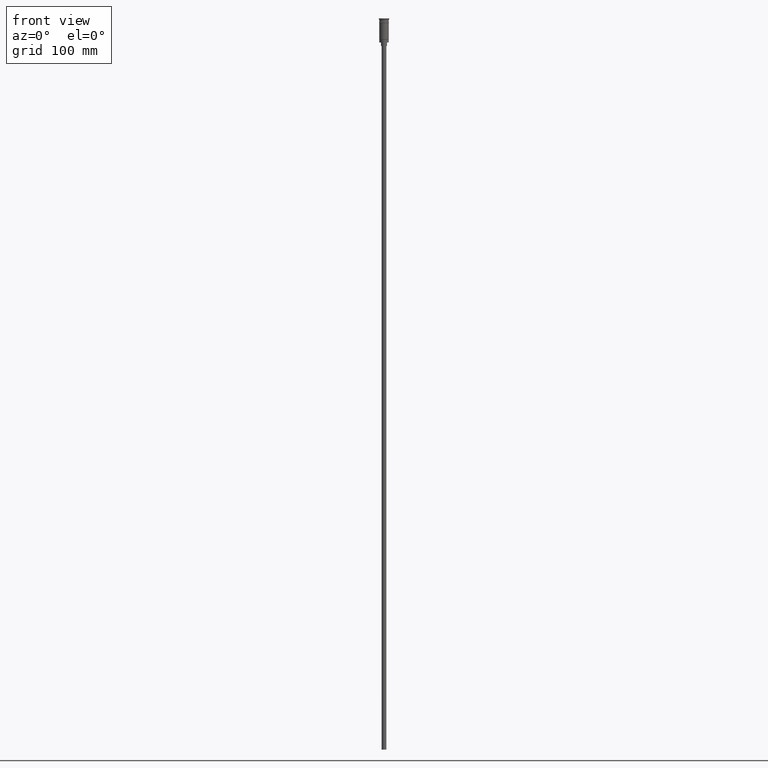
[diagram: clean part render]
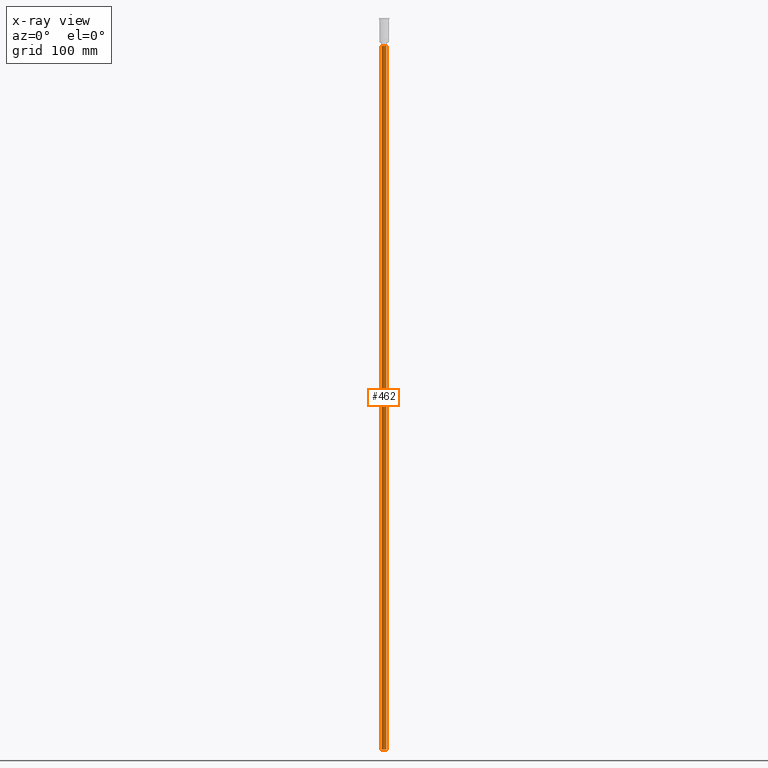
[diagram: x-ray — body ghosted, one internal face saturated and labeled with its STEP entity id]
A machine part, front view, then the same camera in x-ray: the body is ghosted and one INTERNAL B-rep face — a face not visible from any outside direction — is saturated and labeled: STEP entity #462.
In plain terms, the highlighted cylindrical surface (edge-blend (fillet) strip) has radius 2 mm, axis along (-0, -0, 1).
Its self-contained STEP definition (entity closure, byte-faithful):
#55 = AXIS2_PLACEMENT_3D ( 'NONE', #1494, #488, #1348 ) ;
#60 = DIRECTION ( 'NONE',  ( -0.000000000000000000, -0.000000000000000000, 1.000000000000000000 ) ) ;
#126 = CARTESIAN_POINT ( 'NONE',  ( -2.000000000000000000, 2.449293598294706414E-16, -23.49999999999999645 ) ) ;
#140 = ORIENTED_EDGE ( 'NONE', *, *, #431, .F. ) ;
#141 = CIRCLE ( 'NONE', #350, 2.000000000000000000 ) ;
#142 = EDGE_CURVE ( 'NONE', #1125, #1257, #872, .T. ) ;
#181 = LINE ( 'NONE', #1175, #1102 ) ;
#191 = DIRECTION ( 'NONE',  ( -1.000000000000000000, 0.000000000000000000, 0.000000000000000000 ) ) ;
#230 = ORIENTED_EDGE ( 'NONE', *, *, #1417, .T. ) ;
#253 = CARTESIAN_POINT ( 'NONE',  ( 2.000000000000000000, 0.000000000000000000, -620.4999999999998863 ) ) ;
#350 = AXIS2_PLACEMENT_3D ( 'NONE', #672, #547, #191 ) ;
#431 = EDGE_CURVE ( 'NONE', #930, #858, #181, .T. ) ;
#462 = ADVANCED_FACE ( 'NONE', ( #745 ), #1226, .T. ) ;
#488 = DIRECTION ( 'NONE',  ( -0.000000000000000000, -0.000000000000000000, 1.000000000000000000 ) ) ;
#533 = ORIENTED_EDGE ( 'NONE', *, *, #142, .T. ) ;
#536 = DIRECTION ( 'NONE',  ( -1.000000000000000000, 0.000000000000000000, 0.000000000000000000 ) ) ;
#547 = DIRECTION ( 'NONE',  ( 0.000000000000000000, 0.000000000000000000, -1.000000000000000000 ) ) ;
#553 = EDGE_LOOP ( 'NONE', ( #140, #1150, #533, #230 ) ) ;
#563 = CARTESIAN_POINT ( 'NONE',  ( 2.000000000000000000, 0.000000000000000000, -620.4999999999998863 ) ) ;
#641 = CARTESIAN_POINT ( 'NONE',  ( 0.000000000000000000, 0.000000000000000000, -23.49999999999999645 ) ) ;
#672 = CARTESIAN_POINT ( 'NONE',  ( 0.000000000000000000, 0.000000000000000000, -620.4999999999998863 ) ) ;
#745 = FACE_OUTER_BOUND ( 'NONE', #553, .T. ) ;
#747 = DIRECTION ( 'NONE',  ( -0.000000000000000000, -0.000000000000000000, 1.000000000000000000 ) ) ;
#858 = VERTEX_POINT ( 'NONE', #126 ) ;
#872 = LINE ( 'NONE', #253, #1040 ) ;
#930 = VERTEX_POINT ( 'NONE', #993 ) ;
#993 = CARTESIAN_POINT ( 'NONE',  ( -2.000000000000000000, 2.449293598294706414E-16, -620.4999999999998863 ) ) ;
#1037 = CIRCLE ( 'NONE', #1428, 2.000000000000000000 ) ;
#1040 = VECTOR ( 'NONE', #747, 1000.000000000000000 ) ;
#1063 = EDGE_CURVE ( 'NONE', #1125, #930, #141, .T. ) ;
#1102 = VECTOR ( 'NONE', #60, 1000.000000000000000 ) ;
#1125 = VERTEX_POINT ( 'NONE', #563 ) ;
#1150 = ORIENTED_EDGE ( 'NONE', *, *, #1063, .F. ) ;
#1175 = CARTESIAN_POINT ( 'NONE',  ( -2.000000000000000000, 2.449293598294706414E-16, -620.4999999999998863 ) ) ;
#1185 = CARTESIAN_POINT ( 'NONE',  ( 2.000000000000000000, 0.000000000000000000, -23.49999999999999645 ) ) ;
#1226 = CYLINDRICAL_SURFACE ( 'NONE', #55, 2.000000000000000000 ) ;
#1257 = VERTEX_POINT ( 'NONE', #1185 ) ;
#1348 = DIRECTION ( 'NONE',  ( 1.000000000000000000, 0.000000000000000000, 0.000000000000000000 ) ) ;
#1417 = EDGE_CURVE ( 'NONE', #1257, #858, #1037, .T. ) ;
#1428 = AXIS2_PLACEMENT_3D ( 'NONE', #641, #1509, #536 ) ;
#1494 = CARTESIAN_POINT ( 'NONE',  ( 0.000000000000000000, 0.000000000000000000, -620.4999999999998863 ) ) ;
#1509 = DIRECTION ( 'NONE',  ( 0.000000000000000000, 0.000000000000000000, -1.000000000000000000 ) ) ;